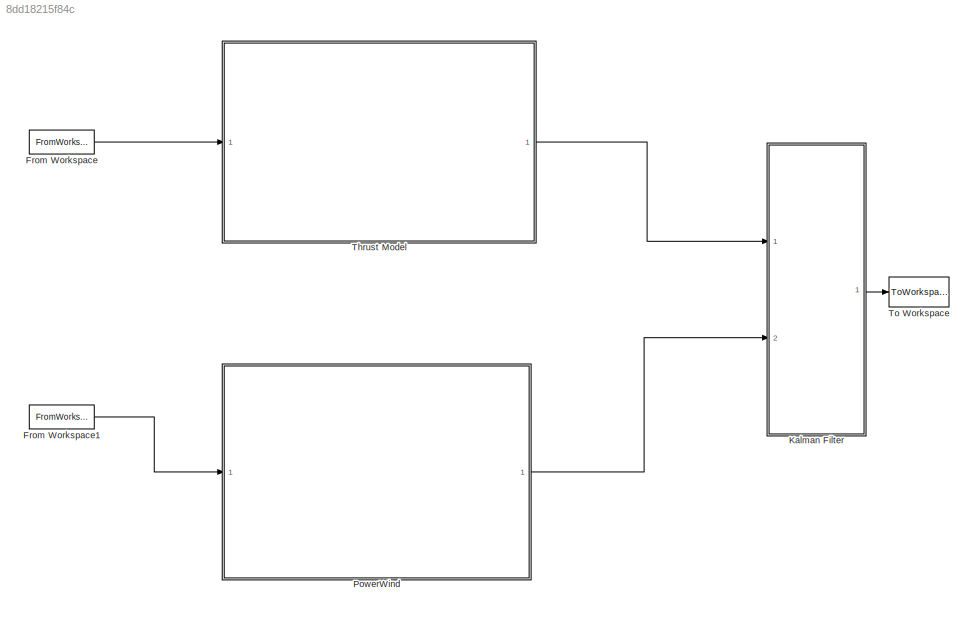
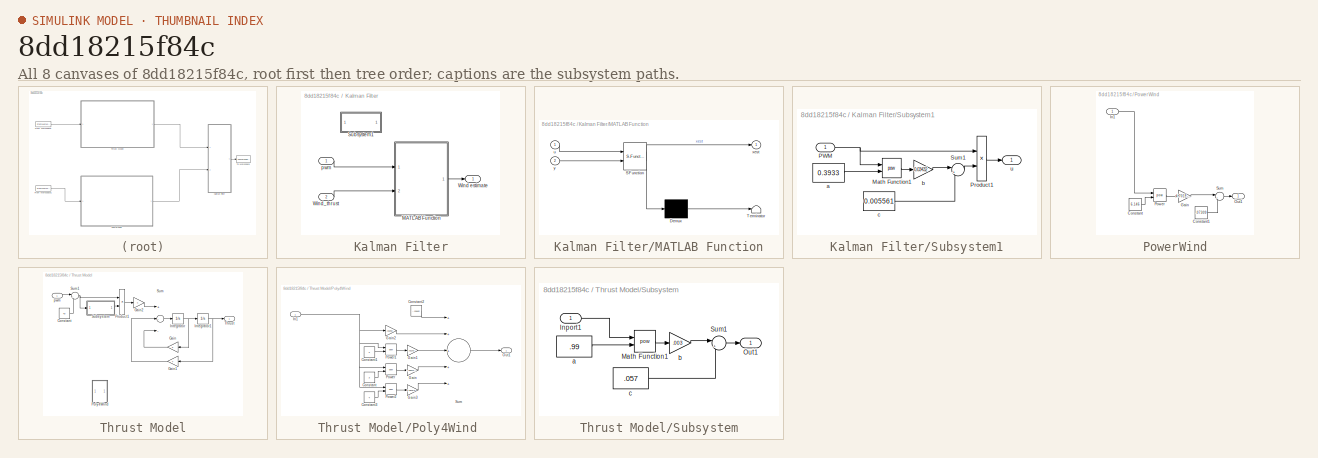
[diagram: thumbnail index - all 8 canvases of the model, root first then tree order]
MODEL slx_8dd18215f84c
KIND model
CONFIG AbsTol = auto
CONFIG EnableMultiTasking = off
CONFIG FixedStep = auto
CONFIG MaxStep = auto
CONFIG MinStep = auto
CONFIG RelTol = 1e-3
CONFIG SampleTimeConstraint = Unconstrained
CONFIG Solver = VariableStepAuto
CONFIG SolverName = VariableStepAuto
CONFIG StartTime = 0.0
CONFIG StopTime = ramp_new(end,1)
BLOCK [FromWorkspace] From Workspace
  SampleTime = .01
  VariableName = PWM
  ZeroCross = on
BLOCK [FromWorkspace] From Workspace1
  SampleTime = .01
  VariableName = WIND
  ZeroCross = on
BLOCK [SubSystem] Kalman Filter
  Ports = [2, 1]
  RequestExecContextInheritance = off
BLOCK [SubSystem] Kalman Filter/MATLAB Function
  ErrorFcn = Stateflow.Translate.translate
  PermitHierarchicalResolution = ExplicitOnly
  Ports = [2, 1]
  RequestExecContextInheritance = off
  SFBlockType = MATLAB Function
  TreatAsAtomicUnit = on
BLOCK [Demux] Kalman Filter/MATLAB Function/ Demux 
  Outputs = 1
  Ports = [1, 1]
BLOCK [S-Function] Kalman Filter/MATLAB Function/ SFunction 
  EnableBusSupport = on
  FunctionName = sf_sfun
  PortCounts = [2 2]
  Ports = [2, 2]
  SFcnIsStateOwnerBlock = off
  SFunctionDeploymentMode = off
  Tag = Stateflow S-Function kalman_model 2
BLOCK [Terminator] Kalman Filter/MATLAB Function/ Terminator 
BLOCK [Inport] Kalman Filter/MATLAB Function/u
  IconDisplay = Port number
BLOCK [Outport] Kalman Filter/MATLAB Function/xest
  IconDisplay = Port number
BLOCK [Inport] Kalman Filter/MATLAB Function/y
  IconDisplay = Port number
  Port = 2
BLOCK [SubSystem] Kalman Filter/Subsystem1
  Ports = [1, 1]
  RequestExecContextInheritance = off
BLOCK [Math] Kalman Filter/Subsystem1/Math Function1
  Operator = pow
  Ports = [2, 1]
BLOCK [Inport] Kalman Filter/Subsystem1/PWM
  IconDisplay = Port number
BLOCK [Product] Kalman Filter/Subsystem1/Product1
  InputSameDT = off
  OutDataTypeStr = Inherit: Inherit via internal rule
  Ports = [2, 1]
  RndMeth = Floor
  SaturateOnIntegerOverflow = off
BLOCK [Sum] Kalman Filter/Subsystem1/Sum1
  IconShape = round
  InputSameDT = off
  Inputs = |++
  OutDataTypeStr = Inherit: Inherit via internal rule
  Ports = [2, 1]
  SaturateOnIntegerOverflow = off
BLOCK [Constant] Kalman Filter/Subsystem1/a
  Value = 0.3933
BLOCK [Gain] Kalman Filter/Subsystem1/b
  Gain = 0.03432
  OutDataTypeStr = Inherit: Inherit via internal rule
  ParamDataTypeStr = Inherit: Inherit via internal rule
  SaturateOnIntegerOverflow = off
BLOCK [Constant] Kalman Filter/Subsystem1/c
  Value = 0.005561
BLOCK [Outport] Kalman Filter/Subsystem1/u
  IconDisplay = Port number
BLOCK [Outport] Kalman Filter/Wind estimate
  IconDisplay = Port number
BLOCK [Inport] Kalman Filter/Wind_thrust
  IconDisplay = Port number
  Port = 2
BLOCK [Inport] Kalman Filter/pwm
  IconDisplay = Port number
BLOCK [SubSystem] PowerWind
  Ports = [1, 1]
  RequestExecContextInheritance = off
BLOCK [Constant] PowerWind/Constant
  Value = 6.146
BLOCK [Constant] PowerWind/Constant1
  Value = .07309
BLOCK [Gain] PowerWind/Gain
  Gain = 4.701E-15
  OutDataTypeStr = Inherit: Inherit via internal rule
  ParamDataTypeStr = Inherit: Inherit via internal rule
  SaturateOnIntegerOverflow = off
BLOCK [Inport] PowerWind/In1
  IconDisplay = Port number
BLOCK [Outport] PowerWind/Out1
  IconDisplay = Port number
BLOCK [Math] PowerWind/Power
  Operator = pow
  Ports = [2, 1]
BLOCK [Sum] PowerWind/Sum
  IconShape = round
  InputSameDT = off
  Inputs = |++
  OutDataTypeStr = Inherit: Inherit via internal rule
  Ports = [2, 1]
  SaturateOnIntegerOverflow = off
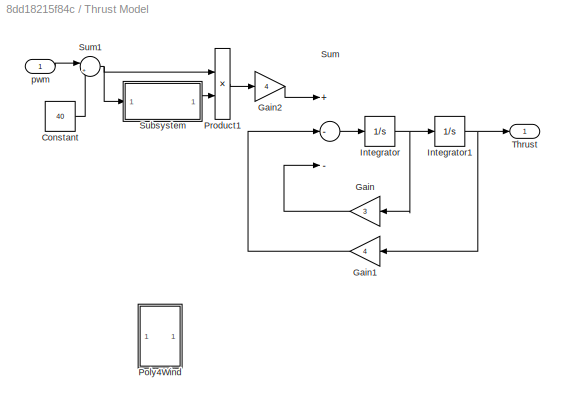
BLOCK [SubSystem] Thrust Model
  Ports = [1, 1]
  RequestExecContextInheritance = off
BLOCK [Constant] Thrust Model/Constant
  Value = 40
BLOCK [Gain] Thrust Model/Gain
  Gain = 3
  OutDataTypeStr = Inherit: Inherit via internal rule
  ParamDataTypeStr = Inherit: Inherit via internal rule
  SaturateOnIntegerOverflow = off
BLOCK [Gain] Thrust Model/Gain1
  Gain = 4
  OutDataTypeStr = Inherit: Inherit via internal rule
  ParamDataTypeStr = Inherit: Inherit via internal rule
  SaturateOnIntegerOverflow = off
BLOCK [Gain] Thrust Model/Gain2
  Gain = 4
  OutDataTypeStr = Inherit: Inherit via internal rule
  ParamDataTypeStr = Inherit: Inherit via internal rule
  SaturateOnIntegerOverflow = off
BLOCK [Integrator] Thrust Model/Integrator
  Ports = [1, 1]
BLOCK [Integrator] Thrust Model/Integrator1
  Ports = [1, 1]
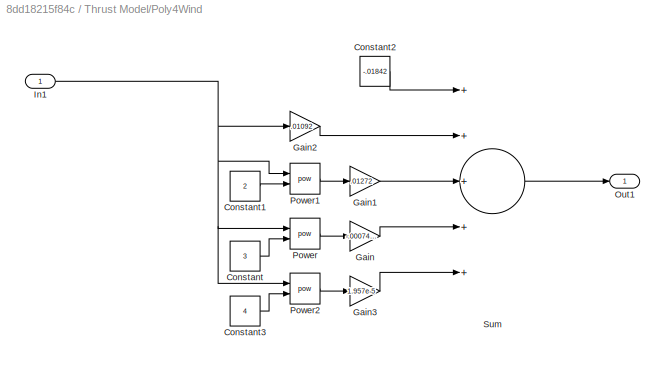
BLOCK [SubSystem] Thrust Model/Poly4Wind 
  Ports = [1, 1]
  RequestExecContextInheritance = off
BLOCK [Constant] Thrust Model/Poly4Wind /Constant
  Value = 3
BLOCK [Constant] Thrust Model/Poly4Wind /Constant1
  Value = 2
BLOCK [Constant] Thrust Model/Poly4Wind /Constant2
  Value = -.01842
BLOCK [Constant] Thrust Model/Poly4Wind /Constant3
  Value = 4
BLOCK [Gain] Thrust Model/Poly4Wind /Gain
  Gain = -.0007476
  OutDataTypeStr = Inherit: Inherit via internal rule
  ParamDataTypeStr = Inherit: Inherit via internal rule
  SaturateOnIntegerOverflow = off
BLOCK [Gain] Thrust Model/Poly4Wind /Gain1
  Gain = .01272
  OutDataTypeStr = Inherit: Inherit via internal rule
  ParamDataTypeStr = Inherit: Inherit via internal rule
  SaturateOnIntegerOverflow = off
BLOCK [Gain] Thrust Model/Poly4Wind /Gain2
  Gain = .01092
  OutDataTypeStr = Inherit: Inherit via internal rule
  ParamDataTypeStr = Inherit: Inherit via internal rule
  SaturateOnIntegerOverflow = off
BLOCK [Gain] Thrust Model/Poly4Wind /Gain3
  Gain = 1.957e-5
  OutDataTypeStr = Inherit: Inherit via internal rule
  ParamDataTypeStr = Inherit: Inherit via internal rule
  SaturateOnIntegerOverflow = off
BLOCK [Inport] Thrust Model/Poly4Wind /In1
  IconDisplay = Port number
BLOCK [Outport] Thrust Model/Poly4Wind /Out1
  IconDisplay = Port number
BLOCK [Math] Thrust Model/Poly4Wind /Power
  Operator = pow
  Ports = [2, 1]
BLOCK [Math] Thrust Model/Poly4Wind /Power1
  Operator = pow
  Ports = [2, 1]
BLOCK [Math] Thrust Model/Poly4Wind /Power2
  Operator = pow
  Ports = [2, 1]
BLOCK [Sum] Thrust Model/Poly4Wind /Sum
  InputSameDT = off
  Inputs = +++++
  OutDataTypeStr = Inherit: Inherit via internal rule
  Ports = [5, 1]
  SaturateOnIntegerOverflow = off
BLOCK [Product] Thrust Model/Product1
  InputSameDT = off
  OutDataTypeStr = Inherit: Inherit via internal rule
  Ports = [2, 1]
  RndMeth = Floor
  SaturateOnIntegerOverflow = off
BLOCK [SubSystem] Thrust Model/Subsystem
  Ports = [1, 1]
  RequestExecContextInheritance = off
BLOCK [Inport] Thrust Model/Subsystem/Inport1
  IconDisplay = Port number
BLOCK [Math] Thrust Model/Subsystem/Math Function1
  Operator = pow
  Ports = [2, 1]
BLOCK [Outport] Thrust Model/Subsystem/Out1
  IconDisplay = Port number
BLOCK [Sum] Thrust Model/Subsystem/Sum1
  IconShape = round
  InputSameDT = off
  Inputs = |++
  OutDataTypeStr = Inherit: Inherit via internal rule
  Ports = [2, 1]
  SaturateOnIntegerOverflow = off
BLOCK [Constant] Thrust Model/Subsystem/a
  Value = .99
BLOCK [Gain] Thrust Model/Subsystem/b
  Gain = .003
  OutDataTypeStr = Inherit: Inherit via internal rule
  ParamDataTypeStr = Inherit: Inherit via internal rule
  SaturateOnIntegerOverflow = off
BLOCK [Constant] Thrust Model/Subsystem/c
  Value = .057
BLOCK [Sum] Thrust Model/Sum
  InputSameDT = off
  Inputs = +--
  OutDataTypeStr = Inherit: Inherit via internal rule
  Ports = [3, 1]
  SaturateOnIntegerOverflow = off
BLOCK [Sum] Thrust Model/Sum1
  IconShape = round
  InputSameDT = off
  Inputs = |+-
  OutDataTypeStr = Inherit: Inherit via internal rule
  Ports = [2, 1]
  SaturateOnIntegerOverflow = off
BLOCK [Outport] Thrust Model/Thrust
  IconDisplay = Port number
BLOCK [Inport] Thrust Model/pwm
  IconDisplay = Port number
BLOCK [ToWorkspace] To Workspace
  FixptAsFi = on
  MaxDataPoints = inf
  Ports = [1]
  SampleTime = -1
  Save2DSignal = 3-D array (concatenate along third dimension)
  VariableName = kalman_out
LINE From Workspace1:1 -> PowerWind:1
LINE From Workspace:1 -> Thrust Model:1
LINE Kalman Filter/MATLAB Function:1 -> Kalman Filter/Wind estimate:1
LINE Kalman Filter/Subsystem1/Math Function1:1 -> Kalman Filter/Subsystem1/b:1
NET Kalman Filter/Subsystem1/PWM:1 -> Kalman Filter/Subsystem1/Math Function1:1, Kalman Filter/Subsystem1/Product1:1
LINE Kalman Filter/Subsystem1/Product1:1 -> Kalman Filter/Subsystem1/u:1
LINE Kalman Filter/Subsystem1/Sum1:1 -> Kalman Filter/Subsystem1/Product1:2
LINE Kalman Filter/Subsystem1/a:1 -> Kalman Filter/Subsystem1/Math Function1:2
LINE Kalman Filter/Subsystem1/b:1 -> Kalman Filter/Subsystem1/Sum1:1
LINE Kalman Filter/Subsystem1/c:1 -> Kalman Filter/Subsystem1/Sum1:2
LINE Kalman Filter/Wind_thrust:1 -> Kalman Filter/MATLAB Function:2
LINE Kalman Filter/pwm:1 -> Kalman Filter/MATLAB Function:1
LINE Kalman Filter:1 -> To Workspace:1
LINE PowerWind/Constant1:1 -> PowerWind/Sum:2
LINE PowerWind/Constant:1 -> PowerWind/Power:2
LINE PowerWind/Gain:1 -> PowerWind/Sum:1
LINE PowerWind/In1:1 -> PowerWind/Power:1
LINE PowerWind/Power:1 -> PowerWind/Gain:1
LINE PowerWind/Sum:1 -> PowerWind/Out1:1
LINE PowerWind:1 -> Kalman Filter:2
LINE Thrust Model/Constant:1 -> Thrust Model/Sum1:2
LINE Thrust Model/Gain1:1 -> Thrust Model/Sum:2
LINE Thrust Model/Gain2:1 -> Thrust Model/Sum:1
LINE Thrust Model/Gain:1 -> Thrust Model/Sum:3
NET Thrust Model/Integrator1:1 -> Thrust Model/Gain1:1, Thrust Model/Thrust:1
NET Thrust Model/Integrator:1 -> Thrust Model/Gain:1, Thrust Model/Integrator1:1
LINE Thrust Model/Poly4Wind /Constant1:1 -> Thrust Model/Poly4Wind /Power1:2
LINE Thrust Model/Poly4Wind /Constant2:1 -> Thrust Model/Poly4Wind /Sum:1
LINE Thrust Model/Poly4Wind /Constant3:1 -> Thrust Model/Poly4Wind /Power2:2
LINE Thrust Model/Poly4Wind /Constant:1 -> Thrust Model/Poly4Wind /Power:2
LINE Thrust Model/Poly4Wind /Gain1:1 -> Thrust Model/Poly4Wind /Sum:3
LINE Thrust Model/Poly4Wind /Gain2:1 -> Thrust Model/Poly4Wind /Sum:2
LINE Thrust Model/Poly4Wind /Gain3:1 -> Thrust Model/Poly4Wind /Sum:5
LINE Thrust Model/Poly4Wind /Gain:1 -> Thrust Model/Poly4Wind /Sum:4
NET Thrust Model/Poly4Wind /In1:1 -> Thrust Model/Poly4Wind /Gain2:1, Thrust Model/Poly4Wind /Power1:1, Thrust Model/Poly4Wind /Power2:1, Thrust Model/Poly4Wind /Power:1
LINE Thrust Model/Poly4Wind /Power1:1 -> Thrust Model/Poly4Wind /Gain1:1
LINE Thrust Model/Poly4Wind /Power2:1 -> Thrust Model/Poly4Wind /Gain3:1
LINE Thrust Model/Poly4Wind /Power:1 -> Thrust Model/Poly4Wind /Gain:1
LINE Thrust Model/Poly4Wind /Sum:1 -> Thrust Model/Poly4Wind /Out1:1
LINE Thrust Model/Product1:1 -> Thrust Model/Gain2:1
LINE Thrust Model/Subsystem/Inport1:1 -> Thrust Model/Subsystem/Math Function1:1
LINE Thrust Model/Subsystem/Math Function1:1 -> Thrust Model/Subsystem/b:1
LINE Thrust Model/Subsystem/Sum1:1 -> Thrust Model/Subsystem/Out1:1
LINE Thrust Model/Subsystem/a:1 -> Thrust Model/Subsystem/Math Function1:2
LINE Thrust Model/Subsystem/b:1 -> Thrust Model/Subsystem/Sum1:1
LINE Thrust Model/Subsystem/c:1 -> Thrust Model/Subsystem/Sum1:2
LINE Thrust Model/Subsystem:1 -> Thrust Model/Product1:2
NET Thrust Model/Sum1:1 -> Thrust Model/Product1:1, Thrust Model/Subsystem:1
LINE Thrust Model/Sum:1 -> Thrust Model/Integrator:1
LINE Thrust Model/pwm:1 -> Thrust Model/Sum1:1
LINE Thrust Model:1 -> Kalman Filter:1
note: NET lines group one-source signal fan-out (src -> all destinations, sorted); 1:1 wires keep LINE
CHART Kalman Filter/MATLAB Function states=1 transitions=1
  STATE_LABEL 'eML_blk_kernel()'
  STATE_LABEL "SCRIPT:\nfunction xest  = fcn(u, y)\npersistent P xh\nif isempty(P)\n    P = eye(2);\n    xh = zeros(2,1);\nend\n% A = [0 1; -4 -3];\n% B = [0; 4];\n% C = [1 0];\n\nAd = [0.9998  0.009851; -0.0394    0.9702];\nBd = [0.000198; 0.0394];\nCd = [1 0];\n\nQ = 1;\nR = diag([5,5]);\n\n\n% Model information\nxh_bar = Ad * xh + Bd * u;\nP_bar = Ad * P * Ad' + R;\n\n% Measurement update\nK = P_bar * Cd' * (Cd * P_bar * Cd' + Q)^-1...<+76ch>"
